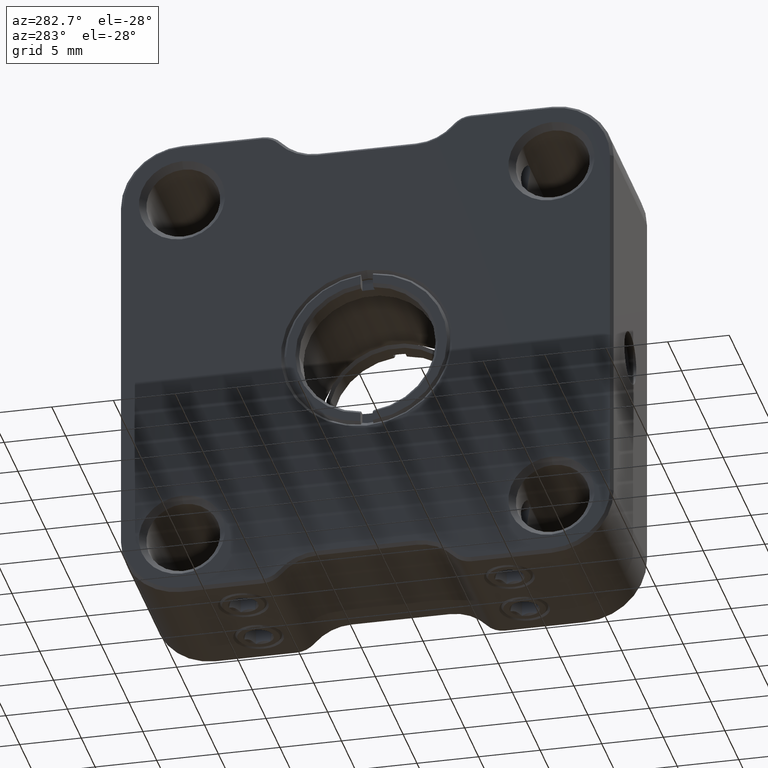
[diagram: clean part render]
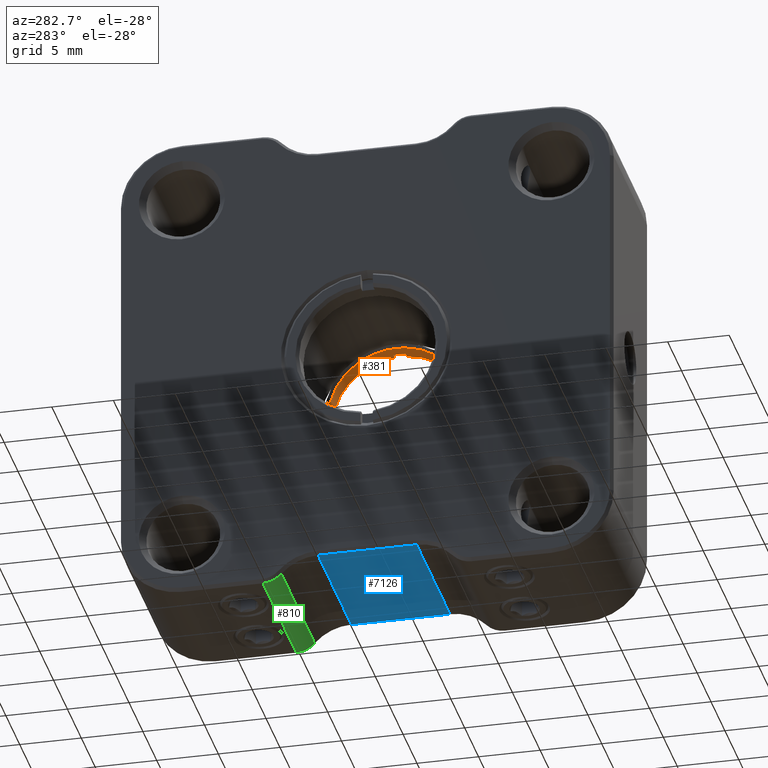
[diagram: same view with three faces highlighted in distinct colors, each labeled with its STEP entity id]
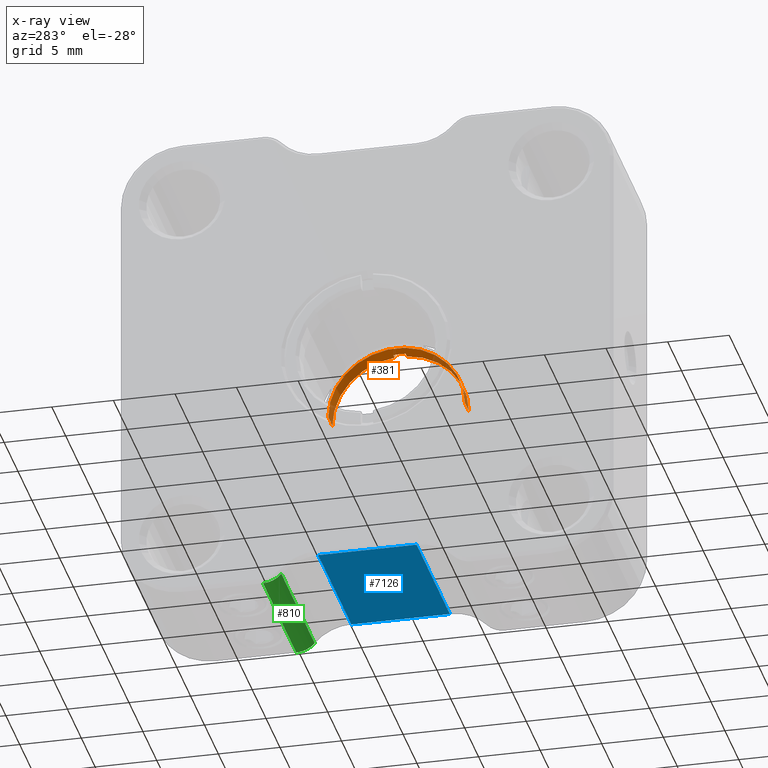
[diagram: x-ray of the same camera — body ghosted, the three highlighted faces saturated]
A machine part, auxiliary view with three faces highlighted in distinct colors.
The next image is the same camera in x-ray (body ghosted, the three faces saturated) — at least one of them is partly hidden behind the body in this view.
Their STEP definitions:

[orange] entity #381 — the highlighted cylindrical surface (partial cylindrical patch) has radius 5.5445 mm, axis along (-1, -0, 0).
#38 = VERTEX_POINT ( 'NONE', #6699 ) ;
#229 = CARTESIAN_POINT ( 'NONE',  ( -9.159600636929951634, 1.609301223409108417, 45.52190911279786434 ) ) ;
#286 = CARTESIAN_POINT ( 'NONE',  ( -10.20960063692995234, -3.435198776590891789, 40.00000000000001421 ) ) ;
#381 = ADVANCED_FACE ( 'NONE', ( #3457 ), #12889, .F. ) ;
#440 = EDGE_CURVE ( 'NONE', #38, #3842, #1541, .T. ) ;
#450 = DIRECTION ( 'NONE',  ( 0.000000000000000000, 1.000000000000000000, 0.000000000000000000 ) ) ;
#597 = DIRECTION ( 'NONE',  ( -1.000000000000000000, -0.000000000000000000, 0.000000000000000000 ) ) ;
#746 = EDGE_CURVE ( 'NONE', #6263, #3842, #11663, .T. ) ;
#910 = ORIENTED_EDGE ( 'NONE', *, *, #11757, .F. ) ;
#954 = CARTESIAN_POINT ( 'NONE',  ( -8.459600636929950568, 2.609301223409108417, 45.52190911279786434 ) ) ;
#1305 = CIRCLE ( 'NONE', #11510, 5.544500000000000206 ) ;
#1331 = ORIENTED_EDGE ( 'NONE', *, *, #12448, .F. ) ;
#1541 = LINE ( 'NONE', #10251, #3069 ) ;
#1637 = DIRECTION ( 'NONE',  ( -1.000000000000000000, -0.000000000000000000, 0.000000000000000000 ) ) ;
#1704 = CARTESIAN_POINT ( 'NONE',  ( -8.459600636929950568, -3.435198776590891789, 40.00000000000001421 ) ) ;
#1722 = VERTEX_POINT ( 'NONE', #1912 ) ;
#1912 = CARTESIAN_POINT ( 'NONE',  ( -8.709600636929948791, -3.435198776590891789, 40.00000000000001421 ) ) ;
#2015 = VECTOR ( 'NONE', #1637, 1000.000000000000000 ) ;
#2360 = LINE ( 'NONE', #12644, #2015 ) ;
#3069 = VECTOR ( 'NONE', #5730, 1000.000000000000000 ) ;
#3209 = DIRECTION ( 'NONE',  ( -1.000000000000000000, -0.000000000000000000, -0.000000000000000000 ) ) ;
#3457 = FACE_OUTER_BOUND ( 'NONE', #10874, .T. ) ;
#3842 = VERTEX_POINT ( 'NONE', #229 ) ;
#4338 = CARTESIAN_POINT ( 'NONE',  ( -9.159600636929951634, 2.109301223409107973, 40.00000000000001421 ) ) ;
#4500 = ORIENTED_EDGE ( 'NONE', *, *, #5310, .T. ) ;
#4520 = DIRECTION ( 'NONE',  ( 1.000000000000000000, 0.000000000000000000, 0.000000000000000000 ) ) ;
#4855 = DIRECTION ( 'NONE',  ( 1.000000000000000000, 0.000000000000000000, 0.000000000000000000 ) ) ;
#5265 = ORIENTED_EDGE ( 'NONE', *, *, #440, .F. ) ;
#5310 = EDGE_CURVE ( 'NONE', #9301, #11474, #11972, .T. ) ;
#5730 = DIRECTION ( 'NONE',  ( -1.000000000000000000, -0.000000000000000000, 0.000000000000000000 ) ) ;
#5802 = LINE ( 'NONE', #1704, #6492 ) ;
#5886 = CARTESIAN_POINT ( 'NONE',  ( -8.709600636929948791, 2.109301223409107973, 40.00000000000001421 ) ) ;
#5958 = ORIENTED_EDGE ( 'NONE', *, *, #746, .T. ) ;
#5985 = AXIS2_PLACEMENT_3D ( 'NONE', #9956, #3209, #6524 ) ;
#6108 = ORIENTED_EDGE ( 'NONE', *, *, #12270, .T. ) ;
#6263 = VERTEX_POINT ( 'NONE', #11838 ) ;
#6433 = DIRECTION ( 'NONE',  ( 1.000000000000000000, 0.000000000000000000, -0.000000000000000000 ) ) ;
#6492 = VECTOR ( 'NONE', #597, 1000.000000000000000 ) ;
#6524 = DIRECTION ( 'NONE',  ( 0.000000000000000000, 1.000000000000000000, 0.000000000000000000 ) ) ;
#6607 = DIRECTION ( 'NONE',  ( 0.000000000000000000, 1.000000000000000000, 0.000000000000000000 ) ) ;
#6699 = CARTESIAN_POINT ( 'NONE',  ( -8.709600636929948791, 1.609301223409108417, 45.52190911279786434 ) ) ;
#7209 = EDGE_CURVE ( 'NONE', #14110, #9453, #1305, .T. ) ;
#7404 = ORIENTED_EDGE ( 'NONE', *, *, #7209, .T. ) ;
#8331 = DIRECTION ( 'NONE',  ( 0.000000000000000000, 1.000000000000000000, 0.000000000000000000 ) ) ;
#8335 = AXIS2_PLACEMENT_3D ( 'NONE', #10381, #4855, #8331 ) ;
#8441 = EDGE_CURVE ( 'NONE', #38, #1722, #12558, .T. ) ;
#8781 = AXIS2_PLACEMENT_3D ( 'NONE', #13546, #11161, #13414 ) ;
#9097 = VECTOR ( 'NONE', #6433, 1000.000000000000000 ) ;
#9301 = VERTEX_POINT ( 'NONE', #286 ) ;
#9453 = VERTEX_POINT ( 'NONE', #11391 ) ;
#9609 = CARTESIAN_POINT ( 'NONE',  ( -10.20960063692995234, 7.653801223409107735, 40.00000000000001421 ) ) ;
#9956 = CARTESIAN_POINT ( 'NONE',  ( -10.20960063692995234, 2.109301223409107973, 40.00000000000001421 ) ) ;
#10251 = CARTESIAN_POINT ( 'NONE',  ( -8.459600636929950568, 1.609301223409108417, 45.52190911279786434 ) ) ;
#10381 = CARTESIAN_POINT ( 'NONE',  ( -8.709600636929948791, 2.109301223409107973, 40.00000000000001421 ) ) ;
#10874 = EDGE_LOOP ( 'NONE', ( #910, #7404, #1331, #5958, #5265, #14095, #6108, #4500 ) ) ;
#11161 = DIRECTION ( 'NONE',  ( -1.000000000000000000, -0.000000000000000000, 0.000000000000000000 ) ) ;
#11391 = CARTESIAN_POINT ( 'NONE',  ( -8.709600636929948791, 2.609301223409108417, 45.52190911279786434 ) ) ;
#11474 = VERTEX_POINT ( 'NONE', #9609 ) ;
#11510 = AXIS2_PLACEMENT_3D ( 'NONE', #5886, #13634, #450 ) ;
#11663 = CIRCLE ( 'NONE', #12029, 5.544500000000000206 ) ;
#11757 = EDGE_CURVE ( 'NONE', #14110, #11474, #2360, .T. ) ;
#11812 = CARTESIAN_POINT ( 'NONE',  ( -8.709600636929948791, 7.653801223409107735, 40.00000000000001421 ) ) ;
#11838 = CARTESIAN_POINT ( 'NONE',  ( -9.159600636929951634, 2.609301223409108417, 45.52190911279786434 ) ) ;
#11878 = LINE ( 'NONE', #954, #9097 ) ;
#11972 = CIRCLE ( 'NONE', #5985, 5.544500000000000206 ) ;
#12029 = AXIS2_PLACEMENT_3D ( 'NONE', #4338, #4520, #6607 ) ;
#12270 = EDGE_CURVE ( 'NONE', #1722, #9301, #5802, .T. ) ;
#12448 = EDGE_CURVE ( 'NONE', #6263, #9453, #11878, .T. ) ;
#12558 = CIRCLE ( 'NONE', #8335, 5.544500000000000206 ) ;
#12644 = CARTESIAN_POINT ( 'NONE',  ( -8.459600636929950568, 7.653801223409107735, 40.00000000000001421 ) ) ;
#12889 = CYLINDRICAL_SURFACE ( 'NONE', #8781, 5.544500000000000206 ) ;
#13414 = DIRECTION ( 'NONE',  ( 0.000000000000000000, -1.000000000000000000, 0.000000000000000000 ) ) ;
#13546 = CARTESIAN_POINT ( 'NONE',  ( -8.459600636929950568, 2.109301223409107973, 40.00000000000001421 ) ) ;
#13634 = DIRECTION ( 'NONE',  ( 1.000000000000000000, 0.000000000000000000, 0.000000000000000000 ) ) ;
#14095 = ORIENTED_EDGE ( 'NONE', *, *, #8441, .T. ) ;
#14110 = VERTEX_POINT ( 'NONE', #11812 ) ;

[blue] entity #7126 — the highlighted planar face has unit normal (0, 0, -1).
#18 = LINE ( 'NONE', #2947, #5963 ) ;
#429 = CARTESIAN_POINT ( 'NONE',  ( -8.459600636929948791, 6.109301223409109305, 22.00000000000002132 ) ) ;
#1109 = CARTESIAN_POINT ( 'NONE',  ( -20.70960063692994169, 6.109301223409109305, 22.00000000000002132 ) ) ;
#1144 = LINE ( 'NONE', #429, #9924 ) ;
#1235 = AXIS2_PLACEMENT_3D ( 'NONE', #10065, #5675, #11149 ) ;
#1729 = ORIENTED_EDGE ( 'NONE', *, *, #9411, .F. ) ;
#2383 = CARTESIAN_POINT ( 'NONE',  ( -8.709600636929948791, -1.890698776590891139, 22.00000000000002132 ) ) ;
#2551 = DIRECTION ( 'NONE',  ( -1.000000000000000000, -0.000000000000000000, -0.000000000000000000 ) ) ;
#2723 = ORIENTED_EDGE ( 'NONE', *, *, #11340, .T. ) ;
#2947 = CARTESIAN_POINT ( 'NONE',  ( -8.459600636929948791, -1.890698776590891139, 22.00000000000002132 ) ) ;
#4226 = VERTEX_POINT ( 'NONE', #1109 ) ;
#4294 = ORIENTED_EDGE ( 'NONE', *, *, #13249, .T. ) ;
#5005 = VERTEX_POINT ( 'NONE', #12224 ) ;
#5348 = DIRECTION ( 'NONE',  ( 0.000000000000000000, 1.000000000000000000, 4.336808689942017736E-16 ) ) ;
#5392 = LINE ( 'NONE', #2383, #11799 ) ;
#5675 = DIRECTION ( 'NONE',  ( 0.000000000000000000, 4.336808689942017736E-16, -1.000000000000000000 ) ) ;
#5963 = VECTOR ( 'NONE', #5969, 1000.000000000000000 ) ;
#5969 = DIRECTION ( 'NONE',  ( -1.000000000000000000, -0.000000000000000000, -0.000000000000000000 ) ) ;
#6527 = CARTESIAN_POINT ( 'NONE',  ( -8.709600636929948791, -1.890698776590891139, 22.00000000000002132 ) ) ;
#6538 = DIRECTION ( 'NONE',  ( 0.000000000000000000, -1.000000000000000000, -4.336808689942017736E-16 ) ) ;
#7126 = ADVANCED_FACE ( 'NONE', ( #13186 ), #8982, .T. ) ;
#7263 = LINE ( 'NONE', #9969, #10416 ) ;
#8320 = ORIENTED_EDGE ( 'NONE', *, *, #12161, .T. ) ;
#8982 = PLANE ( 'NONE',  #1235 ) ;
#9127 = EDGE_LOOP ( 'NONE', ( #2723, #4294, #1729, #8320 ) ) ;
#9411 = EDGE_CURVE ( 'NONE', #14146, #4226, #1144, .T. ) ;
#9924 = VECTOR ( 'NONE', #2551, 1000.000000000000000 ) ;
#9969 = CARTESIAN_POINT ( 'NONE',  ( -20.70960063692994169, 6.109301223409109305, 22.00000000000002132 ) ) ;
#10065 = CARTESIAN_POINT ( 'NONE',  ( -8.459600636929948791, -1.890698776590891139, 22.00000000000002132 ) ) ;
#10416 = VECTOR ( 'NONE', #5348, 1000.000000000000000 ) ;
#11096 = VERTEX_POINT ( 'NONE', #6527 ) ;
#11149 = DIRECTION ( 'NONE',  ( 0.000000000000000000, 1.000000000000000000, 4.336808689942017736E-16 ) ) ;
#11340 = EDGE_CURVE ( 'NONE', #11096, #5005, #18, .T. ) ;
#11696 = CARTESIAN_POINT ( 'NONE',  ( -8.709600636929948791, 6.109301223409109305, 22.00000000000002132 ) ) ;
#11799 = VECTOR ( 'NONE', #6538, 1000.000000000000000 ) ;
#12161 = EDGE_CURVE ( 'NONE', #14146, #11096, #5392, .T. ) ;
#12224 = CARTESIAN_POINT ( 'NONE',  ( -20.70960063692994169, -1.890698776590891139, 22.00000000000002132 ) ) ;
#13186 = FACE_OUTER_BOUND ( 'NONE', #9127, .T. ) ;
#13249 = EDGE_CURVE ( 'NONE', #5005, #4226, #7263, .T. ) ;
#14146 = VERTEX_POINT ( 'NONE', #11696 ) ;

[green] entity #810 — the highlighted cylindrical surface (edge-blend (fillet) strip) has radius 2 mm, axis along (-1, -0, -0).
#287 = EDGE_LOOP ( 'NONE', ( #9929, #12207, #12855, #5778 ) ) ;
#339 = DIRECTION ( 'NONE',  ( 0.000000000000000000, 0.000000000000000000, 1.000000000000000000 ) ) ;
#575 = DIRECTION ( 'NONE',  ( -1.000000000000000000, 0.000000000000000000, 0.000000000000000000 ) ) ;
#675 = DIRECTION ( 'NONE',  ( 0.000000000000000000, 0.000000000000000000, -1.000000000000000000 ) ) ;
#740 = VERTEX_POINT ( 'NONE', #1049 ) ;
#810 = ADVANCED_FACE ( 'NONE', ( #12367 ), #11481, .T. ) ;
#1049 = CARTESIAN_POINT ( 'NONE',  ( -8.709600636929948791, 10.58143717840869868, 20.00000000000001066 ) ) ;
#1119 = EDGE_CURVE ( 'NONE', #13285, #5108, #11840, .T. ) ;
#1165 = AXIS2_PLACEMENT_3D ( 'NONE', #3811, #575, #675 ) ;
#1272 = CARTESIAN_POINT ( 'NONE',  ( -20.70960063692994169, 10.58143717840869868, 22.00000000000001421 ) ) ;
#2258 = DIRECTION ( 'NONE',  ( 1.000000000000000000, 0.000000000000000000, 0.000000000000000000 ) ) ;
#2319 = AXIS2_PLACEMENT_3D ( 'NONE', #9946, #2552, #339 ) ;
#2552 = DIRECTION ( 'NONE',  ( -1.000000000000000000, -0.000000000000000000, -0.000000000000000000 ) ) ;
#2673 = CARTESIAN_POINT ( 'NONE',  ( -20.70960063692994169, 10.58143717840869868, 20.00000000000001066 ) ) ;
#3366 = CARTESIAN_POINT ( 'NONE',  ( -20.70960063692994169, 9.090725193408834670, 20.66666666666668561 ) ) ;
#3811 = CARTESIAN_POINT ( 'NONE',  ( -8.709600636929948791, 10.58143717840869868, 22.00000000000001421 ) ) ;
#3982 = AXIS2_PLACEMENT_3D ( 'NONE', #1272, #2258, #13278 ) ;
#4658 = DIRECTION ( 'NONE',  ( 1.000000000000000000, 0.000000000000000000, 0.000000000000000000 ) ) ;
#4740 = EDGE_CURVE ( 'NONE', #740, #6679, #8133, .T. ) ;
#5108 = VERTEX_POINT ( 'NONE', #2673 ) ;
#5508 = EDGE_CURVE ( 'NONE', #740, #5108, #13007, .T. ) ;
#5778 = ORIENTED_EDGE ( 'NONE', *, *, #4740, .T. ) ;
#6679 = VERTEX_POINT ( 'NONE', #13347 ) ;
#7838 = DIRECTION ( 'NONE',  ( -1.000000000000000000, -0.000000000000000000, -0.000000000000000000 ) ) ;
#8133 = CIRCLE ( 'NONE', #1165, 2.000000000000001776 ) ;
#9689 = EDGE_CURVE ( 'NONE', #13285, #6679, #12299, .T. ) ;
#9929 = ORIENTED_EDGE ( 'NONE', *, *, #9689, .F. ) ;
#9946 = CARTESIAN_POINT ( 'NONE',  ( -8.459600636929948791, 10.58143717840869868, 22.00000000000001421 ) ) ;
#10120 = VECTOR ( 'NONE', #7838, 1000.000000000000000 ) ;
#11042 = CARTESIAN_POINT ( 'NONE',  ( -20.95960063692994879, 10.58143717840869868, 20.00000000000001066 ) ) ;
#11481 = CYLINDRICAL_SURFACE ( 'NONE', #2319, 2.000000000000001776 ) ;
#11840 = CIRCLE ( 'NONE', #3982, 2.000000000000001776 ) ;
#12207 = ORIENTED_EDGE ( 'NONE', *, *, #1119, .T. ) ;
#12299 = LINE ( 'NONE', #13147, #13477 ) ;
#12367 = FACE_OUTER_BOUND ( 'NONE', #287, .T. ) ;
#12855 = ORIENTED_EDGE ( 'NONE', *, *, #5508, .F. ) ;
#13007 = LINE ( 'NONE', #11042, #10120 ) ;
#13147 = CARTESIAN_POINT ( 'NONE',  ( -8.459600636929948791, 9.090725193408834670, 20.66666666666668561 ) ) ;
#13278 = DIRECTION ( 'NONE',  ( 0.000000000000000000, 0.000000000000000000, -1.000000000000000000 ) ) ;
#13285 = VERTEX_POINT ( 'NONE', #3366 ) ;
#13347 = CARTESIAN_POINT ( 'NONE',  ( -8.709600636929948791, 9.090725193408834670, 20.66666666666668561 ) ) ;
#13477 = VECTOR ( 'NONE', #4658, 1000.000000000000000 ) ;